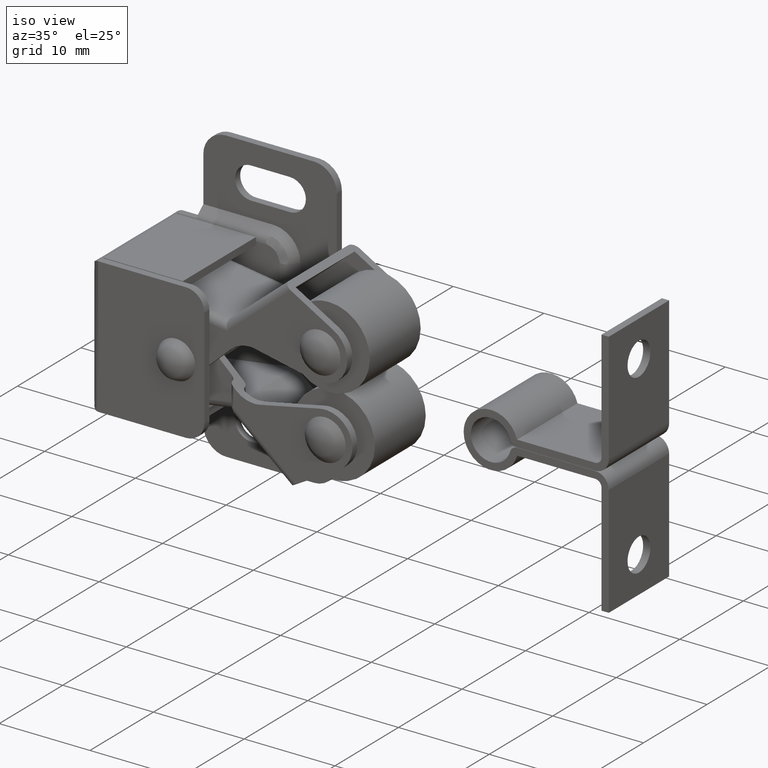
[diagram: clean part render]
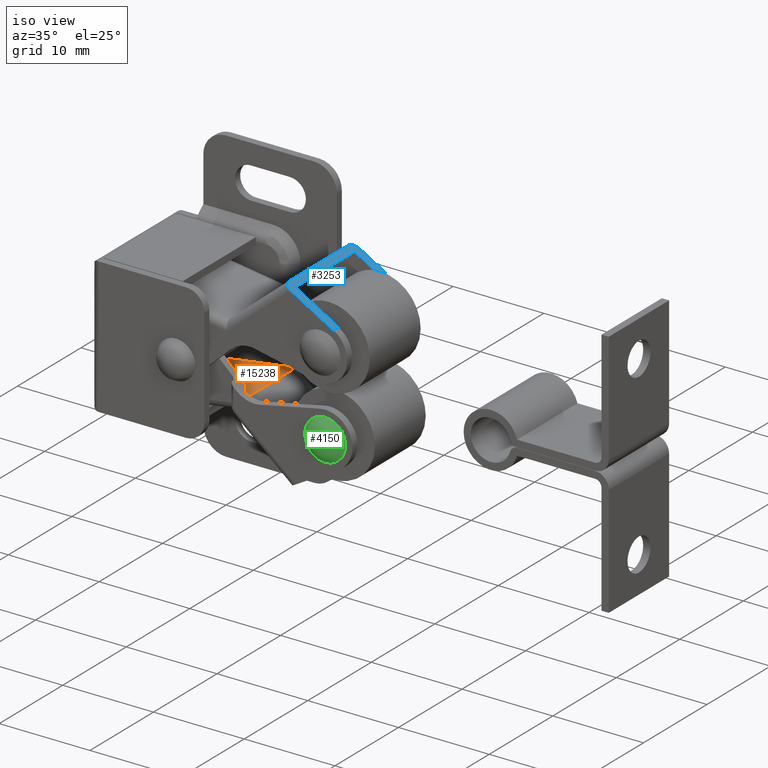
[diagram: same view with three faces highlighted in distinct colors, each labeled with its STEP entity id]
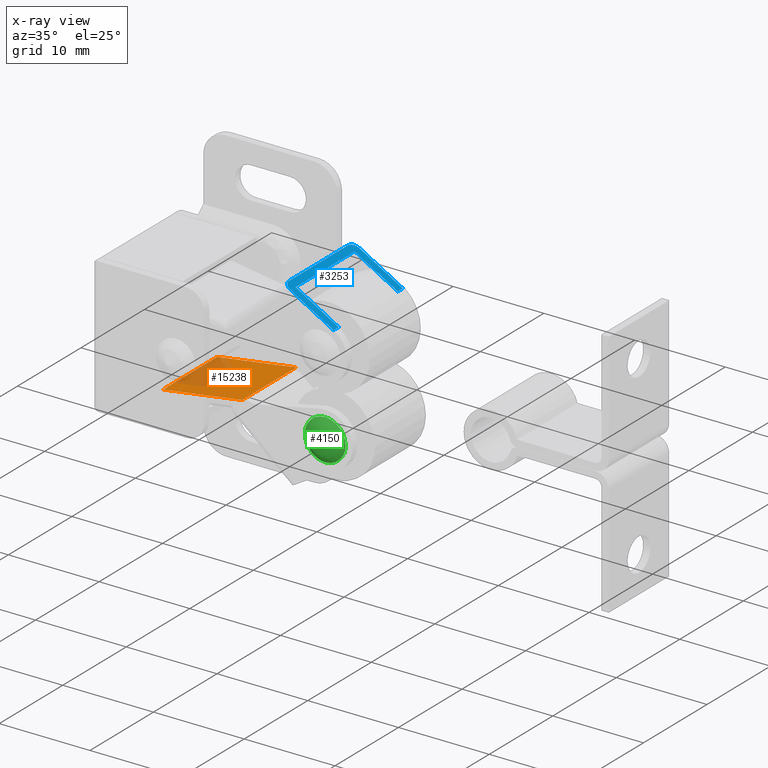
[diagram: x-ray of the same camera — body ghosted, the three highlighted faces saturated]
A machine part, iso view with three faces highlighted in distinct colors.
The next image is the same camera in x-ray (body ghosted, the three faces saturated) — at least one of them is partly hidden behind the body in this view.
Their STEP definitions:

[orange] entity #15238 — the highlighted face is a freeform B-spline surface patch.
#14965=CARTESIAN_POINT('',(14.441006066878620,-3.799999999999915,-3.905955818686430));
#14966=VERTEX_POINT('',#14965);
#14972=CARTESIAN_POINT('',(5.699952000000980,-3.799999999999890,-5.191395872474090));
#14973=VERTEX_POINT('',#14972);
#14974=CARTESIAN_POINT('',(14.441006066878620,-3.799999999999915,-3.905955818686430));
#14975=CARTESIAN_POINT('',(5.699952000000980,-3.799999999999890,-5.191395872474090));
#14976=QUASI_UNIFORM_CURVE('',1,(#14974,#14975),.UNSPECIFIED.,.F.,.U.);
#14977=EDGE_CURVE('',#14966,#14973,#14976,.T.);
#15019=CARTESIAN_POINT('',(5.699952000000980,4.700000000000000,-5.191395872474090));
#15020=VERTEX_POINT('',#15019);
#15028=CARTESIAN_POINT('',(14.441006066878620,4.700000000000000,-3.905955818686430));
#15029=VERTEX_POINT('',#15028);
#15030=CARTESIAN_POINT('',(14.441006066878620,4.700000000000000,-3.905955818686430));
#15031=CARTESIAN_POINT('',(5.699952000000980,4.700000000000000,-5.191395872474090));
#15032=QUASI_UNIFORM_CURVE('',1,(#15030,#15031),.UNSPECIFIED.,.F.,.U.);
#15033=EDGE_CURVE('',#15029,#15020,#15032,.T.);
#15153=CARTESIAN_POINT('',(14.441006066878620,-3.799999999999915,-3.905955818686430));
#15154=CARTESIAN_POINT('',(14.441006066878620,4.700000000000000,-3.905955818686430));
#15155=QUASI_UNIFORM_CURVE('',1,(#15153,#15154),.UNSPECIFIED.,.F.,.U.);
#15156=EDGE_CURVE('',#14966,#15029,#15155,.T.);
#15223=CARTESIAN_POINT('',(14.877621700577301,-4.224574983525261,-3.841748090491168));
#15224=CARTESIAN_POINT('',(5.263336131848961,-4.224574983525261,-5.255603635147539));
#15225=CARTESIAN_POINT('',(14.877621700577301,5.124575211513115,-3.841748090491168));
#15226=CARTESIAN_POINT('',(5.263336131848961,5.124575211513115,-5.255603635147539));
#15227=B_SPLINE_SURFACE_WITH_KNOTS('',1,1,((#15223,#15225),(#15224,#15226)),.UNSPECIFIED.,.F.,.F.,.U.,(2,2),(2,2),(0.0,9.717688742608173),(0.0,9.349150195038376),.UNSPECIFIED.);
#15228=ORIENTED_EDGE('',*,*,#15156,.T.);
#15229=ORIENTED_EDGE('',*,*,#15033,.T.);
#15230=CARTESIAN_POINT('',(5.699952000000980,-3.799999999999890,-5.191395872474090));
#15231=CARTESIAN_POINT('',(5.699952000000980,4.700000000000000,-5.191395872474090));
#15232=QUASI_UNIFORM_CURVE('',1,(#15230,#15231),.UNSPECIFIED.,.F.,.U.);
#15233=EDGE_CURVE('',#14973,#15020,#15232,.T.);
#15234=ORIENTED_EDGE('',*,*,#15233,.F.);
#15235=ORIENTED_EDGE('',*,*,#14977,.F.);
#15236=EDGE_LOOP('',(#15228,#15229,#15234,#15235));
#15237=FACE_OUTER_BOUND('',#15236,.T.);
#15238=ADVANCED_FACE('',(#15237),#15227,.F.);

[blue] entity #3253 — the highlighted face is a freeform B-spline surface patch.
#2569=CARTESIAN_POINT('',(20.700012000000001,3.900000011920870,10.250000000000000));
#2570=VERTEX_POINT('',#2569);
#2576=CARTESIAN_POINT('',(21.438414051276101,4.700000011920780,9.826839497791989));
#2577=VERTEX_POINT('',#2576);
#2578=CARTESIAN_POINT('',(21.438414051276101,4.700000011920780,9.826839497791989));
#2579=CARTESIAN_POINT('',(21.344639301939139,4.700041039938601,9.880579557093418));
#2580=CARTESIAN_POINT('',(21.157034779737071,4.661036102255374,9.988091208360229));
#2581=CARTESIAN_POINT('',(20.942668023520660,4.511572550316607,10.110939653946760));
#2582=CARTESIAN_POINT('',(20.811812303319940,4.335850720489948,10.185929928122420));
#2583=CARTESIAN_POINT('',(20.724778331661572,4.143056493359037,10.235807009439030));
#2584=CARTESIAN_POINT('',(20.699903706390320,3.994612674502770,10.250062060470020));
#2585=CARTESIAN_POINT('',(20.700012000000001,3.900000011920870,10.250000000000000));
#2586=B_SPLINE_CURVE_WITH_KNOTS('',3,(#2578,#2579,#2580,#2581,#2582,#2583,#2584,#2585),.UNSPECIFIED.,.F.,.U.,(4,1,1,1,1,4),(-0.000012910429717,0.324265043204266,0.648572004127199,0.851205698679263,1.013351521177617,1.297081926344966),.UNSPECIFIED.);
#2587=EDGE_CURVE('',#2577,#2570,#2586,.T.);
#2611=CARTESIAN_POINT('',(20.700012000000001,-5.399999988079070,10.250000000000000));
#2612=VERTEX_POINT('',#2611);
#2613=CARTESIAN_POINT('',(21.438414051276101,-6.199999988079070,9.826839497791999));
#2614=VERTEX_POINT('',#2613);
#2615=CARTESIAN_POINT('',(20.700011999999969,-5.399999988079070,10.249999999999959));
#2616=CARTESIAN_POINT('',(20.700011999999973,-6.199999958878879,10.249999999999964));
#2617=CARTESIAN_POINT('',(21.438414024324249,-6.199999988079070,9.826839513237449));
#2625=(BOUNDED_CURVE()B_SPLINE_CURVE(2,(#2615,#2616,#2617),.UNSPECIFIED.,.F.,.U.)CURVE()GEOMETRIC_REPRESENTATION_ITEM()QUASI_UNIFORM_CURVE()RATIONAL_B_SPLINE_CURVE((1.0,0.707106794091331,1.0))REPRESENTATION_ITEM(''));
#2626=EDGE_CURVE('',#2612,#2614,#2625,.T.);
#2843=CARTESIAN_POINT('',(21.438414051276101,-5.399999988079070,9.826839497791989));
#2844=VERTEX_POINT('',#2843);
#2850=CARTESIAN_POINT('',(26.184767496563101,-5.399999988079070,7.106818197616720));
#2851=VERTEX_POINT('',#2850);
#2852=CARTESIAN_POINT('',(26.184767496563101,-5.399999988079070,7.106818197616720));
#2853=CARTESIAN_POINT('',(21.438414051276101,-5.399999988079070,9.826839497791989));
#2854=QUASI_UNIFORM_CURVE('',1,(#2852,#2853),.UNSPECIFIED.,.F.,.U.);
#2855=EDGE_CURVE('',#2851,#2844,#2854,.T.);
#2948=CARTESIAN_POINT('',(21.438414051276101,3.900000011920819,9.826839497791989));
#2949=VERTEX_POINT('',#2948);
#2955=CARTESIAN_POINT('',(21.438414051276101,3.900000011920819,9.826839497791989));
#2956=CARTESIAN_POINT('',(21.438414051276101,-5.399999988079070,9.826839497791989));
#2957=QUASI_UNIFORM_CURVE('',1,(#2955,#2956),.UNSPECIFIED.,.F.,.U.);
#2958=EDGE_CURVE('',#2949,#2844,#2957,.T.);
#2994=CARTESIAN_POINT('',(26.184767496563101,3.900000011920870,7.106818197616718));
#2995=VERTEX_POINT('',#2994);
#3015=CARTESIAN_POINT('',(26.184767496563101,3.900000011920870,7.106818197616718));
#3016=CARTESIAN_POINT('',(21.438414051276101,3.900000011920819,9.826839497791989));
#3017=QUASI_UNIFORM_CURVE('',1,(#3015,#3016),.UNSPECIFIED.,.F.,.U.);
#3018=EDGE_CURVE('',#2995,#2949,#3017,.T.);
#3101=CARTESIAN_POINT('',(26.184767496563101,-6.199999988079070,7.106818197616720));
#3102=VERTEX_POINT('',#3101);
#3103=CARTESIAN_POINT('',(26.184767496563101,-6.199999988079070,7.106818197616720));
#3104=CARTESIAN_POINT('',(21.438414051276101,-6.199999988079070,9.826839497791999));
#3105=QUASI_UNIFORM_CURVE('',1,(#3103,#3104),.UNSPECIFIED.,.F.,.U.);
#3106=EDGE_CURVE('',#3102,#2614,#3105,.T.);
#3214=CARTESIAN_POINT('',(20.700012000000001,3.900000011920870,10.250000000000000));
#3215=CARTESIAN_POINT('',(20.700012000000001,-5.399999988079070,10.250000000000000));
#3216=QUASI_UNIFORM_CURVE('',1,(#3214,#3215),.UNSPECIFIED.,.F.,.U.);
#3217=EDGE_CURVE('',#2570,#2612,#3216,.T.);
#3222=CARTESIAN_POINT('',(26.458731022985909,5.244454990794458,6.949816272679769));
#3223=CARTESIAN_POINT('',(20.426048326464581,5.244454990794458,10.407002009243641));
#3224=CARTESIAN_POINT('',(26.458731022985909,-6.744455259313531,6.949816272679771));
#3225=CARTESIAN_POINT('',(20.426048326464581,-6.744455259313530,10.407002009243641));
#3226=B_SPLINE_SURFACE_WITH_KNOTS('',1,1,((#3222,#3224),(#3223,#3225)),.UNSPECIFIED.,.F.,.F.,.U.,(2,2),(2,2),(0.0,6.953085195365330),(0.0,11.988910250107990),.UNSPECIFIED.);
#3227=CARTESIAN_POINT('',(26.184767496563101,4.700000011920780,7.106818197616718));
#3228=VERTEX_POINT('',#3227);
#3229=CARTESIAN_POINT('',(26.184767496563101,4.700000011920780,7.106818197616718));
#3230=CARTESIAN_POINT('',(21.438414051276101,4.700000011920780,9.826839497791989));
#3231=QUASI_UNIFORM_CURVE('',1,(#3229,#3230),.UNSPECIFIED.,.F.,.U.);
#3232=EDGE_CURVE('',#3228,#2577,#3231,.T.);
#3233=ORIENTED_EDGE('',*,*,#3232,.T.);
#3234=ORIENTED_EDGE('',*,*,#2587,.T.);
#3235=ORIENTED_EDGE('',*,*,#3217,.T.);
#3236=ORIENTED_EDGE('',*,*,#2626,.T.);
#3237=ORIENTED_EDGE('',*,*,#3106,.F.);
#3238=CARTESIAN_POINT('',(26.184767496563101,-5.399999988079070,7.106818197616720));
#3239=CARTESIAN_POINT('',(26.184767496563101,-6.199999988079070,7.106818197616720));
#3240=QUASI_UNIFORM_CURVE('',1,(#3238,#3239),.UNSPECIFIED.,.F.,.U.);
#3241=EDGE_CURVE('',#2851,#3102,#3240,.T.);
#3242=ORIENTED_EDGE('',*,*,#3241,.F.);
#3243=ORIENTED_EDGE('',*,*,#2855,.T.);
#3244=ORIENTED_EDGE('',*,*,#2958,.F.);
#3245=ORIENTED_EDGE('',*,*,#3018,.F.);
#3246=CARTESIAN_POINT('',(26.184767496563101,4.700000011920780,7.106818197616718));
#3247=CARTESIAN_POINT('',(26.184767496563101,3.900000011920870,7.106818197616718));
#3248=QUASI_UNIFORM_CURVE('',1,(#3246,#3247),.UNSPECIFIED.,.F.,.U.);
#3249=EDGE_CURVE('',#3228,#2995,#3248,.T.);
#3250=ORIENTED_EDGE('',*,*,#3249,.F.);
#3251=EDGE_LOOP('',(#3233,#3234,#3235,#3236,#3237,#3242,#3243,#3244,#3245,#3250));
#3252=FACE_OUTER_BOUND('',#3251,.T.);
#3253=ADVANCED_FACE('',(#3252),#3226,.T.);

[green] entity #4150 — the highlighted face is a freeform B-spline surface patch.
#4068=CARTESIAN_POINT('',(22.694773345555895,-4.439496466022733,-6.505239654444309));
#4069=CARTESIAN_POINT('',(23.504010634541419,-5.230678773660678,-6.892004730917762));
#4070=CARTESIAN_POINT('',(25.896015374707666,-5.230678773660439,-6.892004730917762));
#4071=CARTESIAN_POINT('',(26.705252664936278,-4.439496455764852,-6.505239649429996));
#4072=CARTESIAN_POINT('',(22.308008269082450,-5.230678773660682,-5.696002365458793));
#4073=CARTESIAN_POINT('',(23.218203274552479,-6.399997000000209,-5.981809725447734));
#4074=CARTESIAN_POINT('',(26.181822736906881,-6.399996999999912,-5.981809725447734));
#4075=CARTESIAN_POINT('',(27.092017742279776,-5.230678759064256,-5.696002361891216));
#4076=CARTESIAN_POINT('',(22.308008269082450,-5.230678773660454,-3.303997625292553));
#4077=CARTESIAN_POINT('',(23.218203274552479,-6.399996999999926,-3.018190263093331));
#4078=CARTESIAN_POINT('',(26.181822736906881,-6.399996999999630,-3.018190263093331));
#4079=CARTESIAN_POINT('',(27.092017742279776,-5.230678759064029,-3.303997628860124));
#4080=CARTESIAN_POINT('',(22.694773350570205,-4.439496455764870,-2.494760335063927));
#4081=CARTESIAN_POINT('',(23.504010638108987,-5.230678759064272,-2.107995257720428));
#4082=CARTESIAN_POINT('',(25.896015371140074,-5.230678759064033,-2.107995257720428));
#4083=CARTESIAN_POINT('',(26.705252659921971,-4.439496445506990,-2.494760340078238));
#4091=(BOUNDED_SURFACE()B_SPLINE_SURFACE(2,2,((#4068,#4072,#4076,#4080),(#4069,#4073,#4077,#4081),(#4070,#4074,#4078,#4082),(#4071,#4075,#4079,#4083)),.UNSPECIFIED.,.F.,.F.,.U.)B_SPLINE_SURFACE_WITH_KNOTS((3,1,3),(3,1,3),(0.0,2.647307393694933,5.294614807860643),(0.0,2.647307393694930,5.294614807860638),.UNSPECIFIED.)GEOMETRIC_REPRESENTATION_ITEM()RATIONAL_B_SPLINE_SURFACE(((1.477937783809273,1.238968891904636,1.238968891904636,1.477937787505012),(1.238968891904636,1.0,1.0,1.238968895600376),(1.238968891904636,1.0,1.0,1.238968895600376),(1.477937787505012,1.238968895600376,1.238968895600376,1.477937791200751)))REPRESENTATION_ITEM('')SURFACE());
#4092=CARTESIAN_POINT('',(24.700013000000201,-5.399997000000000,-6.749999999999910));
#4093=VERTEX_POINT('',#4092);
#4094=CARTESIAN_POINT('',(26.950012999999799,-5.399997000000000,-4.499998815156664));
#4095=VERTEX_POINT('',#4094);
#4096=CARTESIAN_POINT('',(24.700013000000201,-5.399997000000000,-6.749999999999910));
#4097=CARTESIAN_POINT('',(24.985357678375870,-5.399997000000005,-6.750256927575808));
#4098=CARTESIAN_POINT('',(25.500621483768079,-5.399996999999998,-6.650637202267545));
#4099=CARTESIAN_POINT('',(26.109855014295778,-5.399997000000001,-6.290443620153937));
#4100=CARTESIAN_POINT('',(26.538267007499140,-5.399997000000002,-5.840420759932599));
#4101=CARTESIAN_POINT('',(26.860762981272210,-5.399996999999999,-5.254580532398133));
#4102=CARTESIAN_POINT('',(26.950254426036832,-5.399996999999998,-4.776147786935279));
#4103=CARTESIAN_POINT('',(26.950012999999799,-5.399997000000000,-4.499998815156664));
#4104=B_SPLINE_CURVE_WITH_KNOTS('',3,(#4096,#4097,#4098,#4099,#4100,#4101,#4102,#4103),.UNSPECIFIED.,.F.,.U.,(4,1,1,1,1,4),(0.000000089532433,0.855967608228503,1.546283358173775,2.098480893212773,2.705960119351722,3.534314579278571),.UNSPECIFIED.);
#4105=EDGE_CURVE('',#4093,#4095,#4104,.T.);
#4106=ORIENTED_EDGE('',*,*,#4105,.T.);
#4107=CARTESIAN_POINT('',(24.700013000000201,-5.399997000000000,-2.250000000000091));
#4108=VERTEX_POINT('',#4107);
#4109=CARTESIAN_POINT('',(26.950012999999799,-5.399997000000000,-4.499998815156664));
#4110=CARTESIAN_POINT('',(26.950096409772112,-5.399997000000005,-4.288298272464016));
#4111=CARTESIAN_POINT('',(26.902884673647861,-5.399996999999988,-3.957013870901125));
#4112=CARTESIAN_POINT('',(26.729549630361308,-5.399997000000009,-3.499379526103389));
#4113=CARTESIAN_POINT('',(26.460516113349819,-5.399997000000036,-3.056410887902075));
#4114=CARTESIAN_POINT('',(26.041937603332929,-5.399996999999984,-2.657980323705669));
#4115=CARTESIAN_POINT('',(25.426970740609281,-5.399997000000040,-2.334089881543824));
#4116=CARTESIAN_POINT('',(24.976162216576299,-5.399996999999984,-2.249780356823177));
#4117=CARTESIAN_POINT('',(24.700013000000201,-5.399997000000000,-2.250000000000091));
#4118=B_SPLINE_CURVE_WITH_KNOTS('',3,(#4109,#4110,#4111,#4112,#4113,#4114,#4115,#4116,#4117),.UNSPECIFIED.,.F.,.U.,(4,1,1,1,1,1,4),(0.000000089943380,0.635069725319875,0.994028799085863,1.463430847763702,2.181330777873011,2.705959096995323,3.534313243675612),.UNSPECIFIED.);
#4119=EDGE_CURVE('',#4095,#4108,#4118,.T.);
#4120=ORIENTED_EDGE('',*,*,#4119,.T.);
#4121=CARTESIAN_POINT('',(22.450013000000599,-5.399997000000000,-4.500001184843318));
#4122=VERTEX_POINT('',#4121);
#4123=CARTESIAN_POINT('',(24.700013000000201,-5.399997000000000,-2.250000000000091));
#4124=CARTESIAN_POINT('',(24.414644606208071,-5.399997000000015,-2.249727911813879));
#4125=CARTESIAN_POINT('',(23.963875440497421,-5.399996999999972,-2.336980322634685));
#4126=CARTESIAN_POINT('',(23.433064378574549,-5.399997000000035,-2.620806010471315));
#4127=CARTESIAN_POINT('',(23.065087360599659,-5.399996999999956,-2.930425343604771));
#4128=CARTESIAN_POINT('',(22.757410534864739,-5.399997000000020,-3.324614611830772));
#4129=CARTESIAN_POINT('',(22.514117088234659,-5.399997000000001,-3.855784967199453));
#4130=CARTESIAN_POINT('',(22.449899220622751,-5.399996999999996,-4.269894204275907));
#4131=CARTESIAN_POINT('',(22.450013000000599,-5.399997000000000,-4.500001184843318));
#4132=B_SPLINE_CURVE_WITH_KNOTS('',3,(#4123,#4124,#4125,#4126,#4127,#4128,#4129,#4130,#4131),.UNSPECIFIED.,.F.,.U.,(4,1,1,1,1,1,4),(0.000000089531402,0.855967608228597,1.352990869851723,1.794741768189243,2.291775408222004,2.844024521348168,3.534314579278563),.UNSPECIFIED.);
#4133=EDGE_CURVE('',#4108,#4122,#4132,.T.);
#4134=ORIENTED_EDGE('',*,*,#4133,.T.);
#4135=CARTESIAN_POINT('',(22.450013000000599,-5.399997000000000,-4.500001184843318));
#4136=CARTESIAN_POINT('',(22.449937751728680,-5.399997000000004,-4.711696814077357));
#4137=CARTESIAN_POINT('',(22.502363754592562,-5.399996999999998,-5.079807910400552));
#4138=CARTESIAN_POINT('',(22.718666502403192,-5.399997000000007,-5.611244089745595));
#4139=CARTESIAN_POINT('',(23.007001434372761,-5.399997000000000,-6.010203619614038));
#4140=CARTESIAN_POINT('',(23.346167694451442,-5.399997000000017,-6.309994704062233));
#4141=CARTESIAN_POINT('',(23.714190943899389,-5.399996999999951,-6.539959298835960));
#4142=CARTESIAN_POINT('',(24.166195310845708,-5.399997000000104,-6.707958131172426));
#4143=CARTESIAN_POINT('',(24.525139995318622,-5.399996999999902,-6.750030587322887));
#4144=CARTESIAN_POINT('',(24.700013000000201,-5.399997000000000,-6.749999999999910));
#4145=B_SPLINE_CURVE_WITH_KNOTS('',3,(#4135,#4136,#4137,#4138,#4139,#4140,#4141,#4142,#4143,#4144),.UNSPECIFIED.,.F.,.U.,(4,1,1,1,1,1,1,4),(0.000000089938506,0.635069725316447,1.104475684943289,1.711943156404716,2.098480099487420,2.457446495816859,3.009695400493355,3.534313243675635),.UNSPECIFIED.);
#4146=EDGE_CURVE('',#4122,#4093,#4145,.T.);
#4147=ORIENTED_EDGE('',*,*,#4146,.T.);
#4148=EDGE_LOOP('',(#4106,#4120,#4134,#4147));
#4149=FACE_OUTER_BOUND('',#4148,.T.);
#4150=ADVANCED_FACE('',(#4149),#4091,.T.);